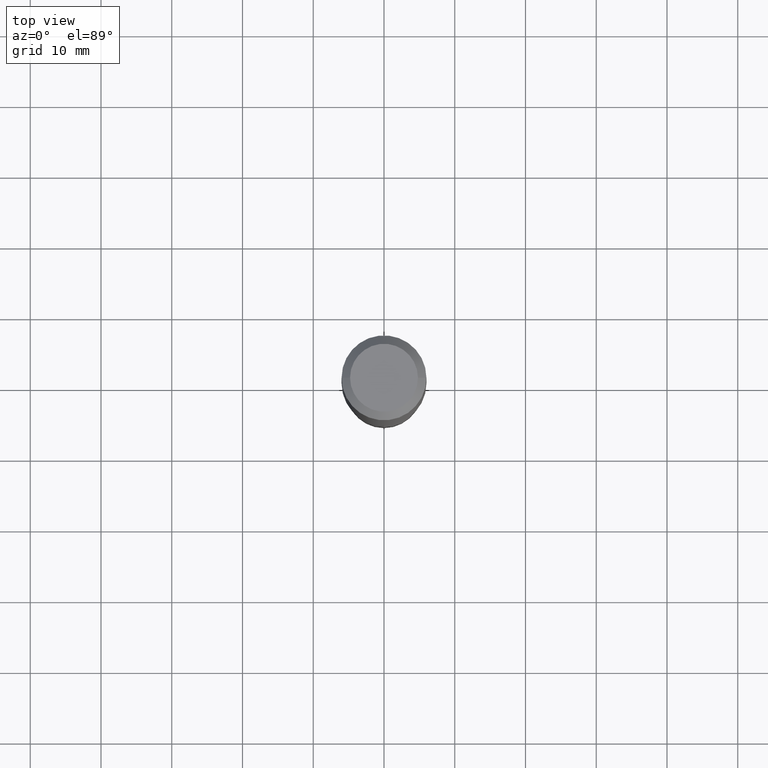
[diagram: clean part render]
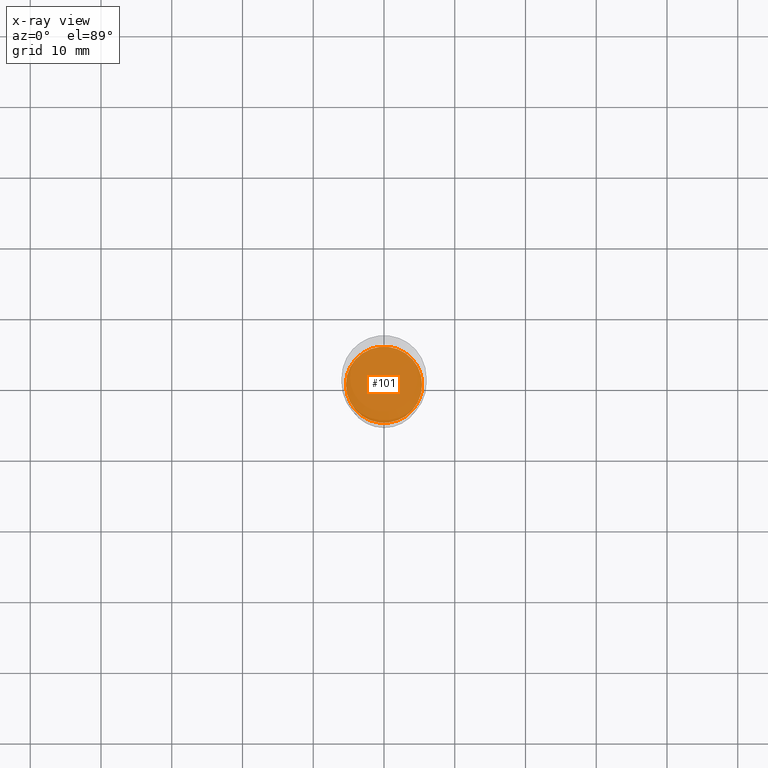
[diagram: x-ray — body ghosted, one internal face saturated and labeled with its STEP entity id]
A machine part, top view, then the same camera in x-ray: the body is ghosted and one INTERNAL B-rep face — a face not visible from any outside direction — is saturated and labeled: STEP entity #101.
In plain terms, the highlighted planar face has unit normal (-0, 0, 1).
Its self-contained STEP definition (entity closure, byte-faithful):
#19 = VERTEX_POINT ( 'NONE', #379 ) ;
#37 = PLANE ( 'NONE',  #440 ) ;
#88 = CARTESIAN_POINT ( 'NONE',  ( 5.564664268474277887E-29, -7.944865786537577497E-15, -2.275500000000000078 ) ) ;
#101 = ADVANCED_FACE ( 'NONE', ( #167 ), #37, .F. ) ;
#162 = AXIS2_PLACEMENT_3D ( 'NONE', #238, #163, #428 ) ;
#163 = DIRECTION ( 'NONE',  ( -2.445468806185136597E-29, 3.491481338843145583E-15, 1.000000000000000000 ) ) ;
#167 = FACE_OUTER_BOUND ( 'NONE', #391, .T. ) ;
#174 = CIRCLE ( 'NONE', #240, 0.2121000000000000107 ) ;
#200 = CIRCLE ( 'NONE', #162, 0.2121000000000000107 ) ;
#203 = ORIENTED_EDGE ( 'NONE', *, *, #476, .F. ) ;
#205 = DIRECTION ( 'NONE',  ( -2.438088387897960049E-29, 3.491481338843145188E-15, 1.000000000000000000 ) ) ;
#238 = CARTESIAN_POINT ( 'NONE',  ( 5.564664268474277887E-29, -7.944865786537577497E-15, -2.275500000000000078 ) ) ;
#240 = AXIS2_PLACEMENT_3D ( 'NONE', #88, #252, #357 ) ;
#242 = VERTEX_POINT ( 'NONE', #276 ) ;
#252 = DIRECTION ( 'NONE',  ( -2.445468806185136597E-29, 3.491481338843145583E-15, 1.000000000000000000 ) ) ;
#255 = EDGE_CURVE ( 'NONE', #19, #242, #200, .T. ) ;
#276 = CARTESIAN_POINT ( 'NONE',  ( -0.2121000000000000107, -6.435155416816294120E-15, -2.275500000000000078 ) ) ;
#347 = DIRECTION ( 'NONE',  ( 1.000000000000000000, -6.982962677686265922E-15, 4.876176775795935793E-29 ) ) ;
#357 = DIRECTION ( 'NONE',  ( 1.000000000000000000, -6.982962677686261977E-15, 0.000000000000000000 ) ) ;
#379 = CARTESIAN_POINT ( 'NONE',  ( 0.2121000000000000107, -9.425952170474834767E-15, -2.275500000000000078 ) ) ;
#380 = ORIENTED_EDGE ( 'NONE', *, *, #255, .F. ) ;
#391 = EDGE_LOOP ( 'NONE', ( #380, #203 ) ) ;
#419 = CARTESIAN_POINT ( 'NONE',  ( 5.564664268474277887E-29, -7.944865786537577497E-15, -2.275500000000000078 ) ) ;
#428 = DIRECTION ( 'NONE',  ( 1.000000000000000000, -6.982962677686261977E-15, 0.000000000000000000 ) ) ;
#440 = AXIS2_PLACEMENT_3D ( 'NONE', #419, #205, #347 ) ;
#476 = EDGE_CURVE ( 'NONE', #242, #19, #174, .T. ) ;